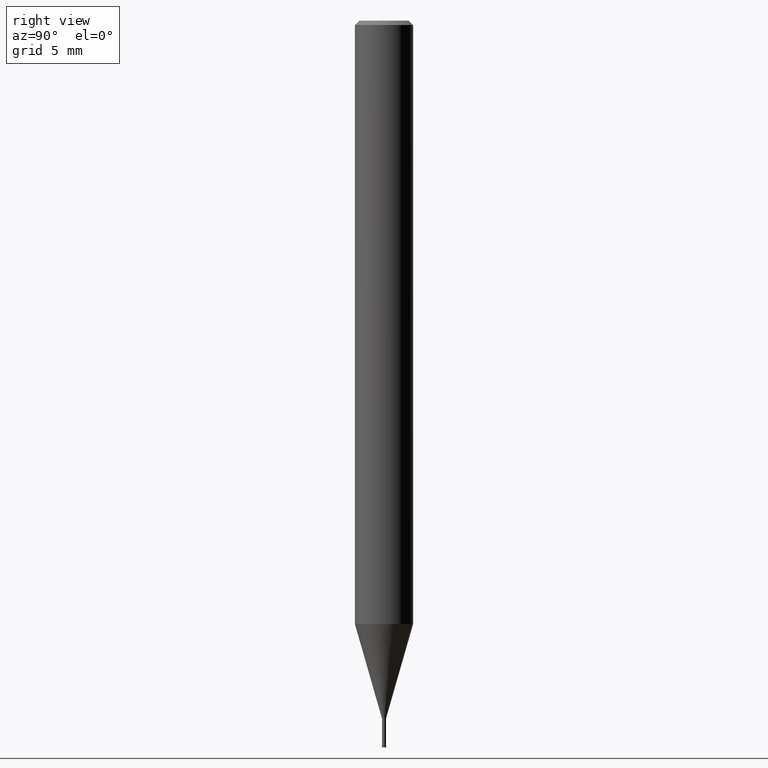
[diagram: clean part render]
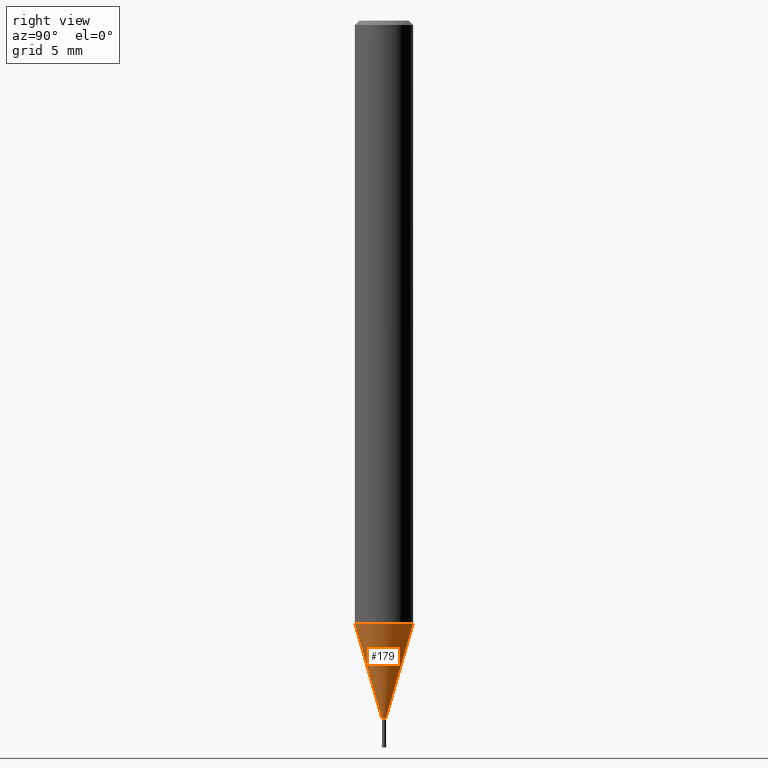
[diagram: same view with one face highlighted and labeled with its STEP entity id]
A machine part, right view. The second image highlights one B-rep face of the part: STEP entity #179.
In plain terms, the highlighted conical surface has half-angle 15.999 deg.
Its self-contained STEP definition (entity closure, byte-faithful):
#155=VERTEX_POINT('',#392);
#179=ADVANCED_FACE('',(#417),#418,.T.);
#213=EDGE_CURVE('',#353,#155,#460,.T.);
#223=VERTEX_POINT('',#471);
#255=EDGE_CURVE('',#223,#297,#510,.T.);
#267=EDGE_CURVE('',#155,#223,#523,.T.);
#297=VERTEX_POINT('',#557);
#333=EDGE_CURVE('',#353,#297,#596,.T.);
#353=VERTEX_POINT('',#618);
#392=CARTESIAN_POINT('',(0.0,0.13995,-47.99));
#417=FACE_OUTER_BOUND('',#695,.T.);
#418=CONICAL_SURFACE('',#696,1.06995,0.27923596926092);
#460=LINE('',#749,#750);
#471=CARTESIAN_POINT('',(1.71383659217442E-017,-0.13995,-47.99));
#510=LINE('',#809,#810);
#523=CIRCLE('',#826,0.13995);
#557=CARTESIAN_POINT('',(2.44915147732706E-016,-1.99995,-41.503));
#596=CIRCLE('',#915,1.99995);
#618=CARTESIAN_POINT('',(0.0,1.99995,-41.503));
#695=EDGE_LOOP('',(#985,#986,#987,#988));
#696=AXIS2_PLACEMENT_3D('',#989,#990,#991);
#749=CARTESIAN_POINT('',(-1.31026756827225E-016,1.06995,-44.7465));
#750=VECTOR('',#1066,1.0);
#809=CARTESIAN_POINT('',(1.31026756827225E-016,-1.06995,-44.7465));
#810=VECTOR('',#1137,1.0);
#826=AXIS2_PLACEMENT_3D('',#1147,#1148,#1149);
#915=AXIS2_PLACEMENT_3D('',#1235,#1236,#1237);
#985=ORIENTED_EDGE('',*,*,#213,.F.);
#986=ORIENTED_EDGE('',*,*,#333,.T.);
#987=ORIENTED_EDGE('',*,*,#255,.F.);
#988=ORIENTED_EDGE('',*,*,#267,.F.);
#989=CARTESIAN_POINT('',(0.0,0.0,-44.7465));
#990=DIRECTION('',(-0.0,-0.0,1.0));
#991=DIRECTION('',(0.0,1.0,0.0));
#1066=DIRECTION('',(3.37527585527933E-017,-0.275621292078393,-0.961266301995986));
#1137=DIRECTION('',(3.37527585527933E-017,-0.275621292078393,0.961266301995986));
#1147=CARTESIAN_POINT('',(0.0,0.0,-47.99));
#1148=DIRECTION('',(0.0,0.0,-1.0));
#1149=DIRECTION('',(0.0,1.0,0.0));
#1235=CARTESIAN_POINT('',(0.0,0.0,-41.503));
#1236=DIRECTION('',(0.0,0.0,-1.0));
#1237=DIRECTION('',(0.0,1.0,0.0));